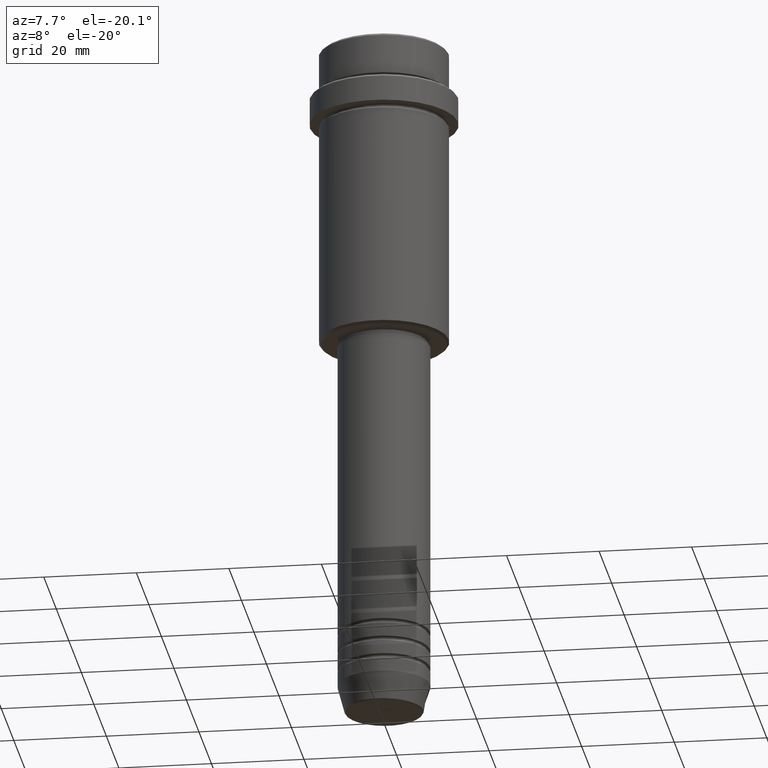
[diagram: clean part render]
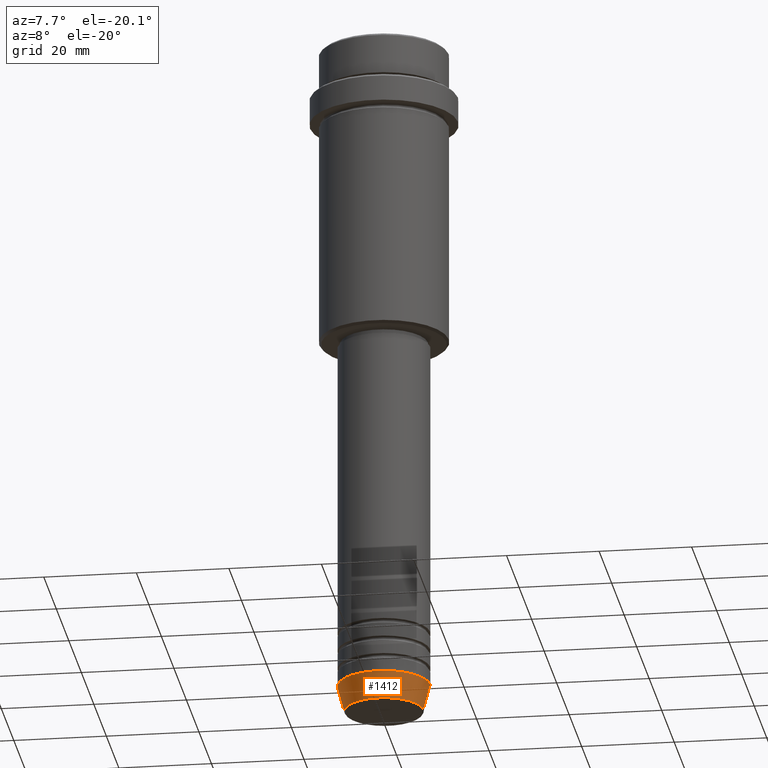
[diagram: same view with one face highlighted and labeled with its STEP entity id]
A machine part, auxiliary view. The second image highlights one B-rep face of the part: STEP entity #1412.
In plain terms, the highlighted conical surface has half-angle 15 deg.
Its self-contained STEP definition (entity closure, byte-faithful):
#15 = CARTESIAN_POINT ( 'NONE',  ( 10.00000000000000000, 0.000000000000000000, -144.0000000000000284 ) ) ;
#21 = ORIENTED_EDGE ( 'NONE', *, *, #567, .F. ) ;
#109 = CARTESIAN_POINT ( 'NONE',  ( -10.00000000000000000, 1.224646799147353256E-15, -144.0000000000000284 ) ) ;
#124 = DIRECTION ( 'NONE',  ( 1.000000000000000000, 0.000000000000000000, 0.000000000000000000 ) ) ;
#132 = CARTESIAN_POINT ( 'NONE',  ( -8.491604264568309191, 1.132284198685156387E-15, -149.6294095225512990 ) ) ;
#253 = EDGE_CURVE ( 'NONE', #666, #374, #604, .T. ) ;
#273 = DIRECTION ( 'NONE',  ( 1.000000000000000000, 0.000000000000000000, 0.000000000000000000 ) ) ;
#281 = VECTOR ( 'NONE', #1267, 1000.000000000000114 ) ;
#302 = CARTESIAN_POINT ( 'NONE',  ( 8.491604264568309191, 0.000000000000000000, -149.6294095225512990 ) ) ;
#374 = VERTEX_POINT ( 'NONE', #302 ) ;
#473 = ORIENTED_EDGE ( 'NONE', *, *, #1277, .T. ) ;
#567 = EDGE_CURVE ( 'NONE', #693, #677, #1301, .T. ) ;
#604 = CIRCLE ( 'NONE', #787, 8.491604264568309191 ) ;
#666 = VERTEX_POINT ( 'NONE', #132 ) ;
#677 = VERTEX_POINT ( 'NONE', #15 ) ;
#693 = VERTEX_POINT ( 'NONE', #109 ) ;
#747 = EDGE_CURVE ( 'NONE', #666, #693, #965, .T. ) ;
#787 = AXIS2_PLACEMENT_3D ( 'NONE', #1359, #1244, #940 ) ;
#820 = CARTESIAN_POINT ( 'NONE',  ( 0.000000000000000000, 0.000000000000000000, -144.0000000000000284 ) ) ;
#852 = VECTOR ( 'NONE', #1312, 1000.000000000000114 ) ;
#869 = AXIS2_PLACEMENT_3D ( 'NONE', #820, #1367, #273 ) ;
#873 = CARTESIAN_POINT ( 'NONE',  ( 10.00000000000000000, 0.000000000000000000, -144.0000000000000284 ) ) ;
#940 = DIRECTION ( 'NONE',  ( 1.000000000000000000, 0.000000000000000000, 0.000000000000000000 ) ) ;
#965 = LINE ( 'NONE', #1283, #281 ) ;
#1029 = ORIENTED_EDGE ( 'NONE', *, *, #253, .T. ) ;
#1035 = EDGE_LOOP ( 'NONE', ( #1058, #1029, #473, #21 ) ) ;
#1058 = ORIENTED_EDGE ( 'NONE', *, *, #747, .F. ) ;
#1095 = DIRECTION ( 'NONE',  ( -0.000000000000000000, -0.000000000000000000, 1.000000000000000000 ) ) ;
#1105 = LINE ( 'NONE', #873, #852 ) ;
#1142 = CONICAL_SURFACE ( 'NONE', #1332, 10.00000000000000000, 0.2617993877991498519 ) ;
#1206 = CARTESIAN_POINT ( 'NONE',  ( 0.000000000000000000, 0.000000000000000000, -144.0000000000000284 ) ) ;
#1244 = DIRECTION ( 'NONE',  ( -0.000000000000000000, -0.000000000000000000, 1.000000000000000000 ) ) ;
#1267 = DIRECTION ( 'NONE',  ( -0.2588190451025211281, 3.169619151431769872E-17, 0.9659258262890680902 ) ) ;
#1277 = EDGE_CURVE ( 'NONE', #374, #677, #1105, .T. ) ;
#1283 = CARTESIAN_POINT ( 'NONE',  ( -10.00000000000000000, 1.224646799147353256E-15, -144.0000000000000284 ) ) ;
#1301 = CIRCLE ( 'NONE', #869, 10.00000000000000000 ) ;
#1307 = FACE_OUTER_BOUND ( 'NONE', #1035, .T. ) ;
#1312 = DIRECTION ( 'NONE',  ( 0.2588190451025211281, 0.000000000000000000, 0.9659258262890680902 ) ) ;
#1332 = AXIS2_PLACEMENT_3D ( 'NONE', #1206, #1095, #124 ) ;
#1359 = CARTESIAN_POINT ( 'NONE',  ( 0.000000000000000000, 0.000000000000000000, -149.6294095225512990 ) ) ;
#1367 = DIRECTION ( 'NONE',  ( -0.000000000000000000, -0.000000000000000000, 1.000000000000000000 ) ) ;
#1412 = ADVANCED_FACE ( 'NONE', ( #1307 ), #1142, .T. ) ;